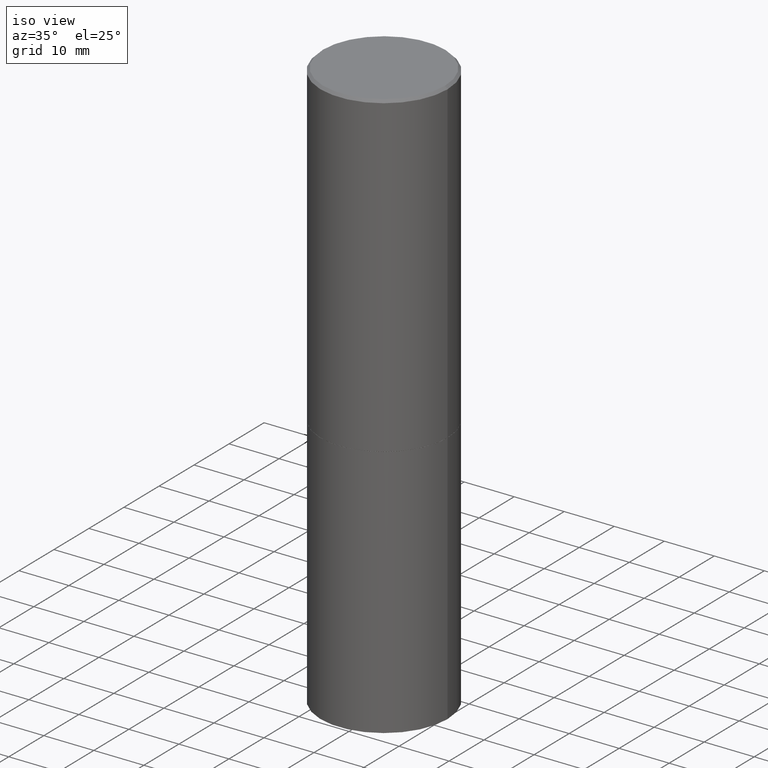
[diagram: clean part render]
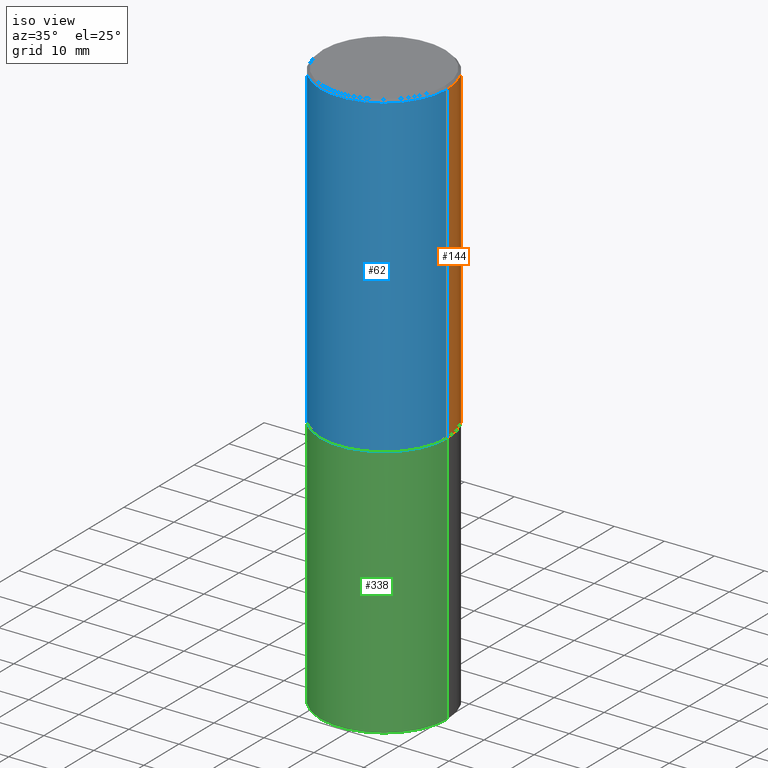
[diagram: same view with three faces highlighted in distinct colors, each labeled with its STEP entity id]
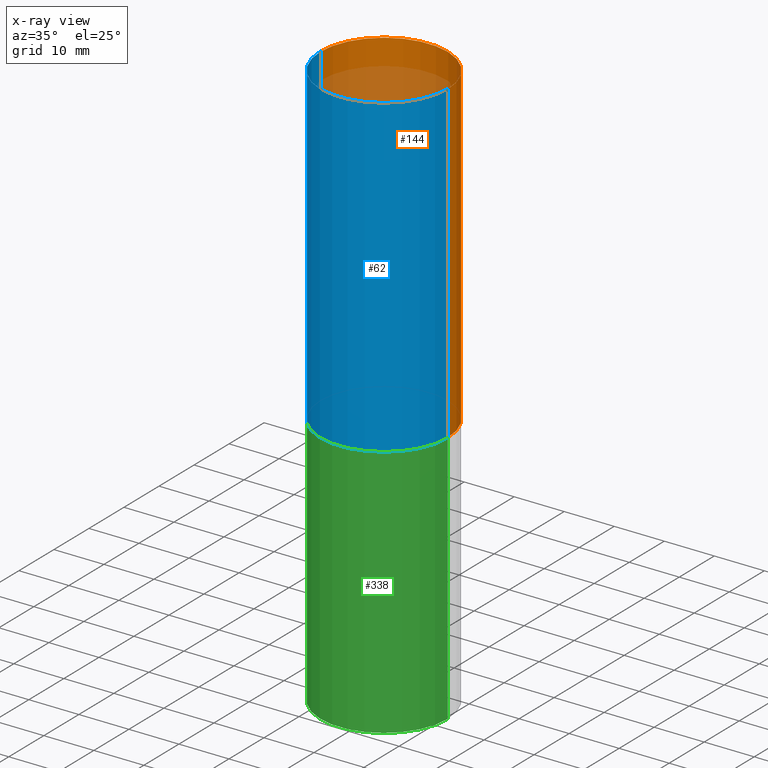
[diagram: x-ray of the same camera — body ghosted, the three highlighted faces saturated]
A machine part, iso view with three faces highlighted in distinct colors.
The next image is the same camera in x-ray (body ghosted, the three faces saturated) — at least one of them is partly hidden behind the body in this view.
Their STEP definitions:

[orange] entity #144 — the highlighted cylindrical surface (partial cylindrical patch) has radius 12.7 mm, axis along (-0, 0, 1).
#1 = EDGE_CURVE ( 'NONE', #30, #9, #127, .T. ) ;
#9 = VERTEX_POINT ( 'NONE', #233 ) ;
#11 = CIRCLE ( 'NONE', #154, 0.5000000000000000000 ) ;
#23 = EDGE_CURVE ( 'NONE', #9, #45, #328, .T. ) ;
#30 = VERTEX_POINT ( 'NONE', #207 ) ;
#43 = EDGE_CURVE ( 'NONE', #30, #130, #11, .T. ) ;
#45 = VERTEX_POINT ( 'NONE', #235 ) ;
#60 = EDGE_CURVE ( 'NONE', #130, #45, #278, .T. ) ;
#120 = DIRECTION ( 'NONE',  ( -2.445468806185136597E-29, 3.491481338843145583E-15, 1.000000000000000000 ) ) ;
#121 = DIRECTION ( 'NONE',  ( -2.445468806185136877E-29, 3.491481338843145188E-15, 1.000000000000000000 ) ) ;
#127 = LINE ( 'NONE', #309, #260 ) ;
#128 = CARTESIAN_POINT ( 'NONE',  ( 4.890937612370298557E-31, -6.982962677686327354E-17, -0.02000000000000010103 ) ) ;
#130 = VERTEX_POINT ( 'NONE', #317 ) ;
#144 = ADVANCED_FACE ( 'NONE', ( #216 ), #157, .T. ) ;
#146 = VECTOR ( 'NONE', #121, 39.37007874015748143 ) ;
#152 = DIRECTION ( 'NONE',  ( -2.445468806185136877E-29, 3.491481338843145188E-15, 1.000000000000000000 ) ) ;
#154 = AXIS2_PLACEMENT_3D ( 'NONE', #181, #120, #285 ) ;
#155 = CARTESIAN_POINT ( 'NONE',  ( -0.4999999999999998335, 3.552713678800499746E-15, -2.459467545127452330E-29 ) ) ;
#157 = CYLINDRICAL_SURFACE ( 'NONE', #168, 0.4999999999999998335 ) ;
#160 = DIRECTION ( 'NONE',  ( -2.445468806185136597E-29, 3.491481338843145583E-15, 1.000000000000000000 ) ) ;
#161 = ORIENTED_EDGE ( 'NONE', *, *, #43, .T. ) ;
#168 = AXIS2_PLACEMENT_3D ( 'NONE', #244, #160, #215 ) ;
#177 = DIRECTION ( 'NONE',  ( -2.445468806185136597E-29, 3.491481338843145583E-15, 1.000000000000000000 ) ) ;
#181 = CARTESIAN_POINT ( 'NONE',  ( 6.111226546656657010E-29, -8.725211865769021935E-15, -2.499000000000000110 ) ) ;
#207 = CARTESIAN_POINT ( 'NONE',  ( 0.5000000000000000000, -1.221669320461215371E-14, -2.499000000000000110 ) ) ;
#215 = DIRECTION ( 'NONE',  ( 1.000000000000000000, -6.982962677686267499E-15, 4.876176775795936353E-29 ) ) ;
#216 = FACE_OUTER_BOUND ( 'NONE', #362, .T. ) ;
#233 = CARTESIAN_POINT ( 'NONE',  ( 0.4999999999999996669, -3.500078625662626713E-15, -0.02000000000000010103 ) ) ;
#235 = CARTESIAN_POINT ( 'NONE',  ( -0.4999999999999996669, 3.421651712066267691E-15, -0.02000000000000010103 ) ) ;
#244 = CARTESIAN_POINT ( 'NONE',  ( 0.000000000000000000, 0.000000000000000000, 0.000000000000000000 ) ) ;
#253 = ORIENTED_EDGE ( 'NONE', *, *, #23, .F. ) ;
#260 = VECTOR ( 'NONE', #152, 39.37007874015748143 ) ;
#278 = LINE ( 'NONE', #155, #146 ) ;
#285 = DIRECTION ( 'NONE',  ( 1.000000000000000000, -6.982962677686265133E-15, 0.000000000000000000 ) ) ;
#299 = ORIENTED_EDGE ( 'NONE', *, *, #60, .T. ) ;
#302 = AXIS2_PLACEMENT_3D ( 'NONE', #128, #177, #349 ) ;
#309 = CARTESIAN_POINT ( 'NONE',  ( 0.4999999999999998335, -3.491481338843132566E-15, 2.438088387897967336E-29 ) ) ;
#317 = CARTESIAN_POINT ( 'NONE',  ( -0.5000000000000000000, -8.448070674724411945E-16, -2.499000000000000110 ) ) ;
#325 = ORIENTED_EDGE ( 'NONE', *, *, #1, .F. ) ;
#328 = CIRCLE ( 'NONE', #302, 0.4999999999999996669 ) ;
#349 = DIRECTION ( 'NONE',  ( 1.000000000000000000, -6.982962677686266711E-15, 0.000000000000000000 ) ) ;
#362 = EDGE_LOOP ( 'NONE', ( #161, #299, #253, #325 ) ) ;

[blue] entity #62 — the highlighted cylindrical surface (partial cylindrical patch) has radius 12.7 mm, axis along (-0, 0, 1).
#1 = EDGE_CURVE ( 'NONE', #30, #9, #127, .T. ) ;
#9 = VERTEX_POINT ( 'NONE', #233 ) ;
#19 = CARTESIAN_POINT ( 'NONE',  ( 6.111226546656657010E-29, -8.725211865769021935E-15, -2.499000000000000110 ) ) ;
#30 = VERTEX_POINT ( 'NONE', #207 ) ;
#45 = VERTEX_POINT ( 'NONE', #235 ) ;
#47 = AXIS2_PLACEMENT_3D ( 'NONE', #227, #314, #229 ) ;
#51 = DIRECTION ( 'NONE',  ( -2.445468806185136597E-29, 3.491481338843145583E-15, 1.000000000000000000 ) ) ;
#60 = EDGE_CURVE ( 'NONE', #130, #45, #278, .T. ) ;
#62 = ADVANCED_FACE ( 'NONE', ( #124 ), #261, .T. ) ;
#78 = CIRCLE ( 'NONE', #287, 0.5000000000000000000 ) ;
#84 = DIRECTION ( 'NONE',  ( -2.445468806185136597E-29, 3.491481338843145583E-15, 1.000000000000000000 ) ) ;
#104 = DIRECTION ( 'NONE',  ( 1.000000000000000000, -6.982962677686265133E-15, 0.000000000000000000 ) ) ;
#110 = DIRECTION ( 'NONE',  ( 1.000000000000000000, -6.982962677686266711E-15, 0.000000000000000000 ) ) ;
#121 = DIRECTION ( 'NONE',  ( -2.445468806185136877E-29, 3.491481338843145188E-15, 1.000000000000000000 ) ) ;
#124 = FACE_OUTER_BOUND ( 'NONE', #132, .T. ) ;
#127 = LINE ( 'NONE', #309, #260 ) ;
#130 = VERTEX_POINT ( 'NONE', #317 ) ;
#132 = EDGE_LOOP ( 'NONE', ( #145, #332, #188, #198 ) ) ;
#143 = CIRCLE ( 'NONE', #190, 0.4999999999999996669 ) ;
#145 = ORIENTED_EDGE ( 'NONE', *, *, #60, .F. ) ;
#146 = VECTOR ( 'NONE', #121, 39.37007874015748143 ) ;
#152 = DIRECTION ( 'NONE',  ( -2.445468806185136877E-29, 3.491481338843145188E-15, 1.000000000000000000 ) ) ;
#155 = CARTESIAN_POINT ( 'NONE',  ( -0.4999999999999998335, 3.552713678800499746E-15, -2.459467545127452330E-29 ) ) ;
#188 = ORIENTED_EDGE ( 'NONE', *, *, #1, .T. ) ;
#190 = AXIS2_PLACEMENT_3D ( 'NONE', #356, #84, #110 ) ;
#198 = ORIENTED_EDGE ( 'NONE', *, *, #219, .F. ) ;
#207 = CARTESIAN_POINT ( 'NONE',  ( 0.5000000000000000000, -1.221669320461215371E-14, -2.499000000000000110 ) ) ;
#219 = EDGE_CURVE ( 'NONE', #45, #9, #143, .T. ) ;
#227 = CARTESIAN_POINT ( 'NONE',  ( 0.000000000000000000, 0.000000000000000000, 0.000000000000000000 ) ) ;
#229 = DIRECTION ( 'NONE',  ( 1.000000000000000000, -6.982962677686267499E-15, 4.876176775795936353E-29 ) ) ;
#233 = CARTESIAN_POINT ( 'NONE',  ( 0.4999999999999996669, -3.500078625662626713E-15, -0.02000000000000010103 ) ) ;
#235 = CARTESIAN_POINT ( 'NONE',  ( -0.4999999999999996669, 3.421651712066267691E-15, -0.02000000000000010103 ) ) ;
#248 = EDGE_CURVE ( 'NONE', #130, #30, #78, .T. ) ;
#260 = VECTOR ( 'NONE', #152, 39.37007874015748143 ) ;
#261 = CYLINDRICAL_SURFACE ( 'NONE', #47, 0.4999999999999998335 ) ;
#278 = LINE ( 'NONE', #155, #146 ) ;
#287 = AXIS2_PLACEMENT_3D ( 'NONE', #19, #51, #104 ) ;
#309 = CARTESIAN_POINT ( 'NONE',  ( 0.4999999999999998335, -3.491481338843132566E-15, 2.438088387897967336E-29 ) ) ;
#314 = DIRECTION ( 'NONE',  ( -2.445468806185136597E-29, 3.491481338843145583E-15, 1.000000000000000000 ) ) ;
#317 = CARTESIAN_POINT ( 'NONE',  ( -0.5000000000000000000, -8.448070674724411945E-16, -2.499000000000000110 ) ) ;
#332 = ORIENTED_EDGE ( 'NONE', *, *, #248, .T. ) ;
#356 = CARTESIAN_POINT ( 'NONE',  ( 4.890937612370298557E-31, -6.982962677686327354E-17, -0.02000000000000010103 ) ) ;

[green] entity #338 — the highlighted cylindrical surface (partial cylindrical patch) has radius 12.7 mm, axis along (-0, 0, 1).
#2 = DIRECTION ( 'NONE',  ( 1.000000000000000000, -6.982962677686266711E-15, 4.876176775795935793E-29 ) ) ;
#7 = CARTESIAN_POINT ( 'NONE',  ( -0.5000000000000000000, -8.667471007150509990E-15, -2.500000000000000000 ) ) ;
#20 = CARTESIAN_POINT ( 'NONE',  ( 0.5000000000000000000, -1.222018468595099830E-14, -2.500000000000000000 ) ) ;
#25 = DIRECTION ( 'NONE',  ( -2.445468806185136877E-29, 3.491481338843145188E-15, 1.000000000000000000 ) ) ;
#32 = VECTOR ( 'NONE', #107, 39.37007874015748143 ) ;
#52 = VERTEX_POINT ( 'NONE', #7 ) ;
#70 = CIRCLE ( 'NONE', #232, 0.5000000000000000000 ) ;
#73 = CARTESIAN_POINT ( 'NONE',  ( 1.100460962783311469E-28, -1.571166602479415690E-14, -4.500000000000000000 ) ) ;
#90 = DIRECTION ( 'NONE',  ( -2.445468806185136597E-29, 3.491481338843145583E-15, 1.000000000000000000 ) ) ;
#91 = FACE_OUTER_BOUND ( 'NONE', #336, .T. ) ;
#107 = DIRECTION ( 'NONE',  ( -2.445468806185136877E-29, 3.491481338843145188E-15, 1.000000000000000000 ) ) ;
#108 = CARTESIAN_POINT ( 'NONE',  ( -0.5000000000000000000, -8.667471007150509990E-15, -4.500000000000000000 ) ) ;
#109 = EDGE_CURVE ( 'NONE', #246, #214, #111, .T. ) ;
#111 = CIRCLE ( 'NONE', #341, 0.5000000000000000000 ) ;
#123 = EDGE_CURVE ( 'NONE', #246, #52, #189, .T. ) ;
#133 = CARTESIAN_POINT ( 'NONE',  ( 0.5000000000000000000, -1.920314736363729025E-14, -4.500000000000000000 ) ) ;
#159 = ORIENTED_EDGE ( 'NONE', *, *, #321, .T. ) ;
#162 = CARTESIAN_POINT ( 'NONE',  ( -0.5000000000000000000, 3.552713678800500929E-15, -2.459467545127452891E-29 ) ) ;
#167 = CYLINDRICAL_SURFACE ( 'NONE', #303, 0.5000000000000000000 ) ;
#169 = LINE ( 'NONE', #301, #222 ) ;
#180 = DIRECTION ( 'NONE',  ( -2.445468806185136597E-29, 3.491481338843145583E-15, 1.000000000000000000 ) ) ;
#189 = LINE ( 'NONE', #162, #32 ) ;
#211 = VERTEX_POINT ( 'NONE', #20 ) ;
#214 = VERTEX_POINT ( 'NONE', #133 ) ;
#221 = DIRECTION ( 'NONE',  ( -2.445468806185136597E-29, 3.491481338843145583E-15, 1.000000000000000000 ) ) ;
#222 = VECTOR ( 'NONE', #25, 39.37007874015748143 ) ;
#232 = AXIS2_PLACEMENT_3D ( 'NONE', #333, #221, #304 ) ;
#246 = VERTEX_POINT ( 'NONE', #108 ) ;
#247 = ORIENTED_EDGE ( 'NONE', *, *, #109, .T. ) ;
#265 = ORIENTED_EDGE ( 'NONE', *, *, #351, .F. ) ;
#281 = DIRECTION ( 'NONE',  ( 1.000000000000000000, -6.982962677686266711E-15, 0.000000000000000000 ) ) ;
#301 = CARTESIAN_POINT ( 'NONE',  ( 0.5000000000000000000, -3.491481338843133355E-15, 2.438088387897967896E-29 ) ) ;
#303 = AXIS2_PLACEMENT_3D ( 'NONE', #305, #90, #2 ) ;
#304 = DIRECTION ( 'NONE',  ( 1.000000000000000000, -6.982962677686269077E-15, 0.000000000000000000 ) ) ;
#305 = CARTESIAN_POINT ( 'NONE',  ( 0.000000000000000000, 0.000000000000000000, 0.000000000000000000 ) ) ;
#321 = EDGE_CURVE ( 'NONE', #214, #211, #169, .T. ) ;
#330 = ORIENTED_EDGE ( 'NONE', *, *, #123, .F. ) ;
#333 = CARTESIAN_POINT ( 'NONE',  ( 6.113672015462842613E-29, -8.728703347107864943E-15, -2.500000000000000000 ) ) ;
#336 = EDGE_LOOP ( 'NONE', ( #330, #247, #159, #265 ) ) ;
#338 = ADVANCED_FACE ( 'NONE', ( #91 ), #167, .T. ) ;
#341 = AXIS2_PLACEMENT_3D ( 'NONE', #73, #180, #281 ) ;
#351 = EDGE_CURVE ( 'NONE', #52, #211, #70, .T. ) ;